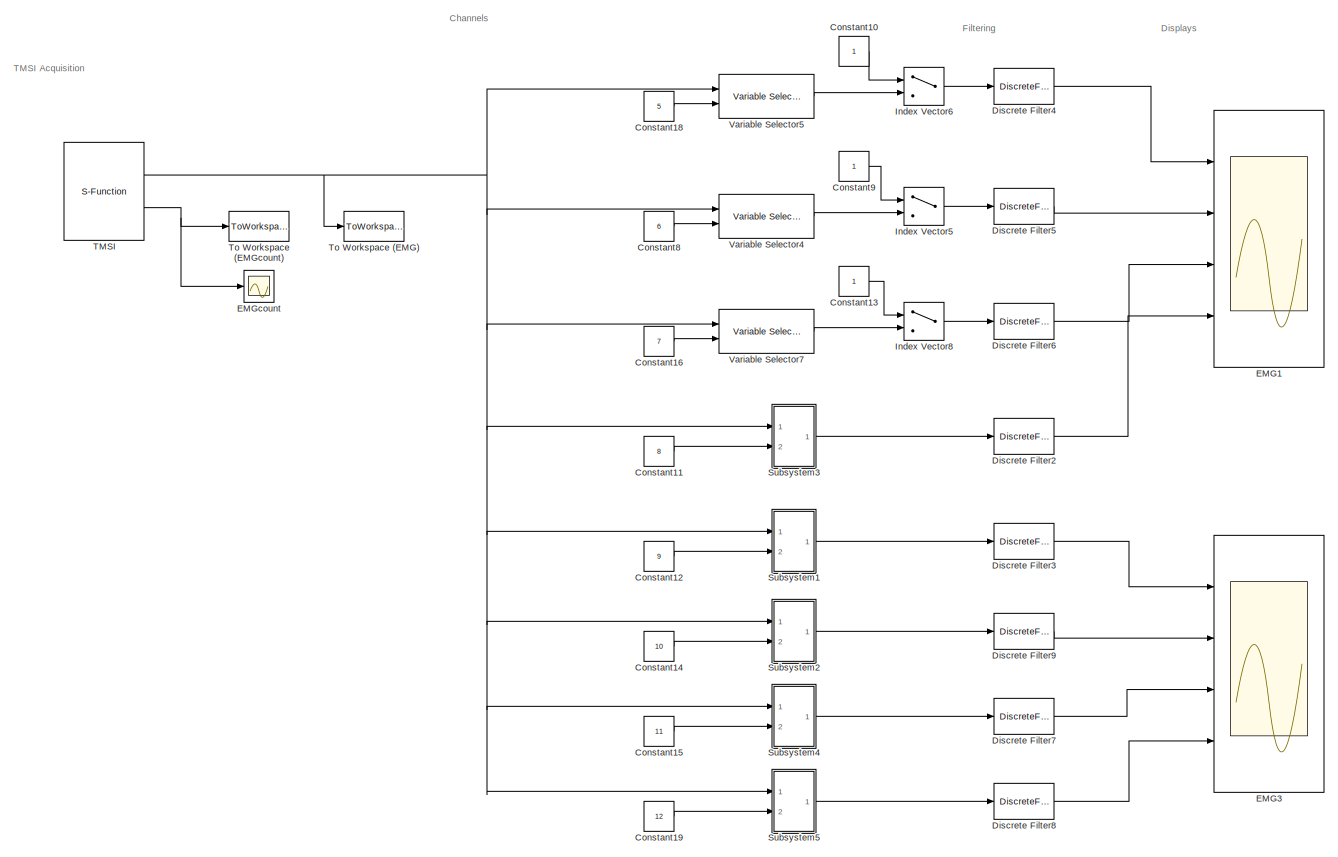
[diagram: root canvas - part 1/1, most of the canvas]
MODEL slx_6db5673837e5
KIND model
CONFIG AbsTol = auto
CONFIG EnableMultiTasking = off
CONFIG FixedStep = 0.01
CONFIG MaxStep = auto
CONFIG MinStep = auto
CONFIG RelTol = 1e-3
CONFIG SampleTimeConstraint = Unconstrained
CONFIG Solver = FixedStepAuto
CONFIG SolverName = FixedStepAuto
CONFIG StartTime = 0.0
CONFIG StopFcn = [file,path] = uiputfile;  \ncd(path)\nsave(file, 'EMGdata', 'EMGcount', 'QuatAngle', 'Angles', 'Angles23', 'QuatAngle1')\ncd ..
CONFIG StopTime = Inf
BLOCK [Constant] Constant10
BLOCK [Constant] Constant11
  Value = 8
BLOCK [Constant] Constant12
  Value = 9
BLOCK [Constant] Constant13
BLOCK [Constant] Constant14
  Value = 10
BLOCK [Constant] Constant15
  Value = 11
BLOCK [Constant] Constant16
  Value = 7
BLOCK [Constant] Constant18
  Value = 5
BLOCK [Constant] Constant19
  Value = 12
BLOCK [Constant] Constant8
  Value = 6
BLOCK [Constant] Constant9
BLOCK [DiscreteFilter] Discrete Filter2
  Denominator = [1.0000   -2.8773    2.7620   -0.8845]
  InputPortMap = u0
  Numerator = [0.9405   -2.8214    2.8214   -0.9405]
  Ports = [1, 1]
BLOCK [DiscreteFilter] Discrete Filter3
  Denominator = [1.0000   -2.8773    2.7620   -0.8845]
  InputPortMap = u0
  Numerator = [0.9405   -2.8214    2.8214   -0.9405]
  Ports = [1, 1]
BLOCK [DiscreteFilter] Discrete Filter4
  Denominator = [1.0000   -2.8773    2.7620   -0.8845]
  InputPortMap = u0
  Numerator = [0.9405   -2.8214    2.8214   -0.9405]
  Ports = [1, 1]
BLOCK [DiscreteFilter] Discrete Filter5
  Denominator = [1.0000   -2.8773    2.7620   -0.8845]
  InputPortMap = u0
  Numerator = [0.9405   -2.8214    2.8214   -0.9405]
  Ports = [1, 1]
BLOCK [DiscreteFilter] Discrete Filter6
  Denominator = [1.0000   -2.8773    2.7620   -0.8845]
  InputPortMap = u0
  Numerator = [0.9405   -2.8214    2.8214   -0.9405]
  Ports = [1, 1]
BLOCK [DiscreteFilter] Discrete Filter7
  Denominator = [1.0000   -2.8773    2.7620   -0.8845]
  InputPortMap = u0
  Numerator = [0.9405   -2.8214    2.8214   -0.9405]
  Ports = [1, 1]
BLOCK [DiscreteFilter] Discrete Filter8
  Denominator = [1.0000   -2.8773    2.7620   -0.8845]
  InputPortMap = u0
  Numerator = [0.9405   -2.8214    2.8214   -0.9405]
  Ports = [1, 1]
BLOCK [DiscreteFilter] Discrete Filter9
  Denominator = [1.0000   -2.8773    2.7620   -0.8845]
  InputPortMap = u0
  Numerator = [0.9405   -2.8214    2.8214   -0.9405]
  Ports = [1, 1]
BLOCK [Scope] EMG1
  NumInputPorts = 4
  Ports = [4]
  ScopeSpecificationString = Simulink.scopes.TimeScopeBlockCfg('CurrentConfiguration', extmgr.ConfigurationSet(extmgr.Configuration('Core','General UI',true),extmgr.Configuration('Core','Source UI',true),extmgr.Configuration('Sources','WiredSimulink',true,'DataLoggingVariableName','ScopeData1'),extmgr.Configuration('Visuals','Time Domain',true,'SerializedDisplays',{struct('MinYLimReal','-0.000001','MaxYLimReal','0.0000009','Y...<+3486ch>
BLOCK [Scope] EMG3
  NumInputPorts = 4
  Ports = [4]
  ScopeSpecificationString = Simulink.scopes.TimeScopeBlockCfg('CurrentConfiguration', extmgr.ConfigurationSet(extmgr.Configuration('Core','General UI',true),extmgr.Configuration('Core','Source UI',true),extmgr.Configuration('Sources','WiredSimulink',true,'DataLoggingVariableName','ScopeData1'),extmgr.Configuration('Visuals','Time Domain',true,'SerializedDisplays',{struct('MinYLimReal','-0.0000007','MaxYLimReal','0.0000006','...<+3628ch>
BLOCK [Scope] EMGcount
  NumInputPorts = 1
  Ports = [1]
  ScopeSpecificationString = Simulink.scopes.TimeScopeBlockCfg('CurrentConfiguration', extmgr.ConfigurationSet(extmgr.Configuration('Core','General UI',true),extmgr.Configuration('Core','Source UI',true),extmgr.Configuration('Sources','WiredSimulink',true,'DataLoggingVariableName','ScopeData2'),extmgr.Configuration('Visuals','Time Domain',true,'SerializedDisplays',{struct('MinYLimReal','-1.375','MaxYLimReal','12.375','YLabelR...<+1378ch>
BLOCK [MultiPortSwitch] Index Vector5
  DataPortOrder = Zero-based contiguous
  InputSameDT = off
  Inputs = 1
  Ports = [2, 1]
  SaturateOnIntegerOverflow = off
  zeroidx = on
BLOCK [MultiPortSwitch] Index Vector6
  DataPortOrder = Zero-based contiguous
  InputSameDT = off
  Inputs = 1
  Ports = [2, 1]
  SaturateOnIntegerOverflow = off
  zeroidx = on
BLOCK [MultiPortSwitch] Index Vector8
  DataPortOrder = Zero-based contiguous
  InputSameDT = off
  Inputs = 1
  Ports = [2, 1]
  SaturateOnIntegerOverflow = off
  zeroidx = on
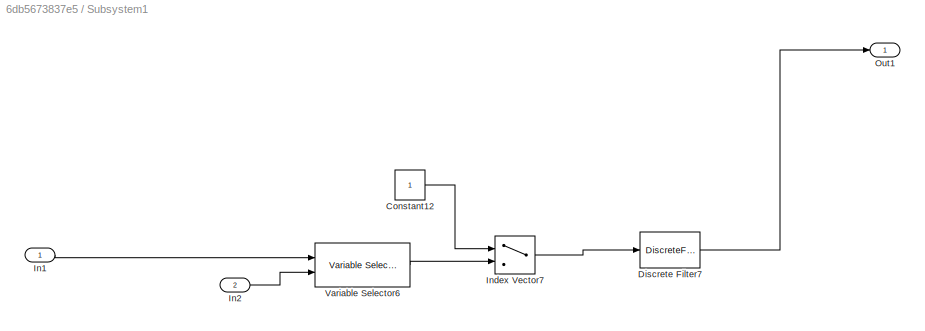
BLOCK [SubSystem] Subsystem1
  Ports = [2, 1]
  RequestExecContextInheritance = off
  Variant = off
BLOCK [Constant] Subsystem1/Constant12
BLOCK [DiscreteFilter] Subsystem1/Discrete Filter7
  Denominator = [1.0000   -2.8773    2.7620   -0.8845]
  InputPortMap = u0
  Numerator = [0.9405   -2.8214    2.8214   -0.9405]
  Ports = [1, 1]
BLOCK [Inport] Subsystem1/In1
  IconDisplay = Port number
BLOCK [Inport] Subsystem1/In2
  IconDisplay = Port number
  Port = 2
BLOCK [MultiPortSwitch] Subsystem1/Index Vector7
  DataPortOrder = Zero-based contiguous
  InputSameDT = off
  Inputs = 1
  Ports = [2, 1]
  SaturateOnIntegerOverflow = off
  zeroidx = on
BLOCK [Outport] Subsystem1/Out1
  IconDisplay = Port number
BLOCK [Reference] Subsystem1/Variable Selector6  REF=dspindex/Variable
Selector
  Ports = [2, 1]
  SourceBlock = dspindex/Variable\nSelector
  SourceProductBaseCode = DS
  SourceProductName = DSP System Toolbox
  SourceType = Variable Selector
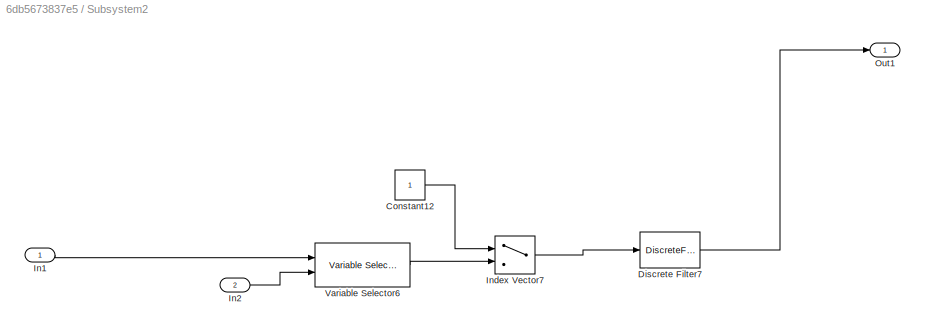
BLOCK [SubSystem] Subsystem2
  Ports = [2, 1]
  RequestExecContextInheritance = off
  Variant = off
BLOCK [Constant] Subsystem2/Constant12
BLOCK [DiscreteFilter] Subsystem2/Discrete Filter7
  Denominator = [1.0000   -2.8773    2.7620   -0.8845]
  InputPortMap = u0
  Numerator = [0.9405   -2.8214    2.8214   -0.9405]
  Ports = [1, 1]
BLOCK [Inport] Subsystem2/In1
  IconDisplay = Port number
BLOCK [Inport] Subsystem2/In2
  IconDisplay = Port number
  Port = 2
BLOCK [MultiPortSwitch] Subsystem2/Index Vector7
  DataPortOrder = Zero-based contiguous
  InputSameDT = off
  Inputs = 1
  Ports = [2, 1]
  SaturateOnIntegerOverflow = off
  zeroidx = on
BLOCK [Outport] Subsystem2/Out1
  IconDisplay = Port number
BLOCK [Reference] Subsystem2/Variable Selector6  REF=dspindex/Variable
Selector
  Ports = [2, 1]
  SourceBlock = dspindex/Variable\nSelector
  SourceProductBaseCode = DS
  SourceProductName = DSP System Toolbox
  SourceType = Variable Selector
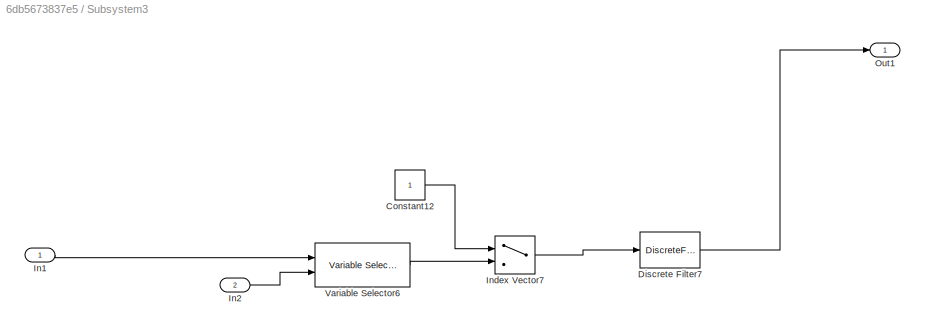
BLOCK [SubSystem] Subsystem3
  Ports = [2, 1]
  RequestExecContextInheritance = off
  Variant = off
BLOCK [Constant] Subsystem3/Constant12
BLOCK [DiscreteFilter] Subsystem3/Discrete Filter7
  Denominator = [1.0000   -2.8773    2.7620   -0.8845]
  InputPortMap = u0
  Numerator = [0.9405   -2.8214    2.8214   -0.9405]
  Ports = [1, 1]
BLOCK [Inport] Subsystem3/In1
  IconDisplay = Port number
BLOCK [Inport] Subsystem3/In2
  IconDisplay = Port number
  Port = 2
BLOCK [MultiPortSwitch] Subsystem3/Index Vector7
  DataPortOrder = Zero-based contiguous
  InputSameDT = off
  Inputs = 1
  Ports = [2, 1]
  SaturateOnIntegerOverflow = off
  zeroidx = on
BLOCK [Outport] Subsystem3/Out1
  IconDisplay = Port number
BLOCK [Reference] Subsystem3/Variable Selector6  REF=dspindex/Variable
Selector
  Ports = [2, 1]
  SourceBlock = dspindex/Variable\nSelector
  SourceProductBaseCode = DS
  SourceProductName = DSP System Toolbox
  SourceType = Variable Selector
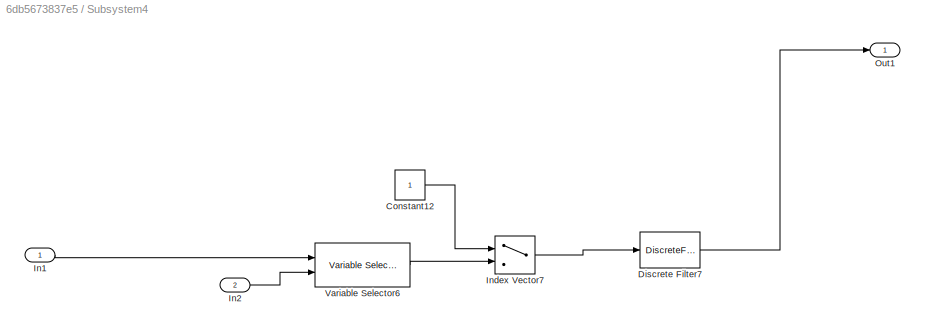
BLOCK [SubSystem] Subsystem4
  Ports = [2, 1]
  RequestExecContextInheritance = off
  Variant = off
BLOCK [Constant] Subsystem4/Constant12
BLOCK [DiscreteFilter] Subsystem4/Discrete Filter7
  Denominator = [1.0000   -2.8773    2.7620   -0.8845]
  InputPortMap = u0
  Numerator = [0.9405   -2.8214    2.8214   -0.9405]
  Ports = [1, 1]
BLOCK [Inport] Subsystem4/In1
  IconDisplay = Port number
BLOCK [Inport] Subsystem4/In2
  IconDisplay = Port number
  Port = 2
BLOCK [MultiPortSwitch] Subsystem4/Index Vector7
  DataPortOrder = Zero-based contiguous
  InputSameDT = off
  Inputs = 1
  Ports = [2, 1]
  SaturateOnIntegerOverflow = off
  zeroidx = on
BLOCK [Outport] Subsystem4/Out1
  IconDisplay = Port number
BLOCK [Reference] Subsystem4/Variable Selector6  REF=dspindex/Variable
Selector
  Ports = [2, 1]
  SourceBlock = dspindex/Variable\nSelector
  SourceProductBaseCode = DS
  SourceProductName = DSP System Toolbox
  SourceType = Variable Selector
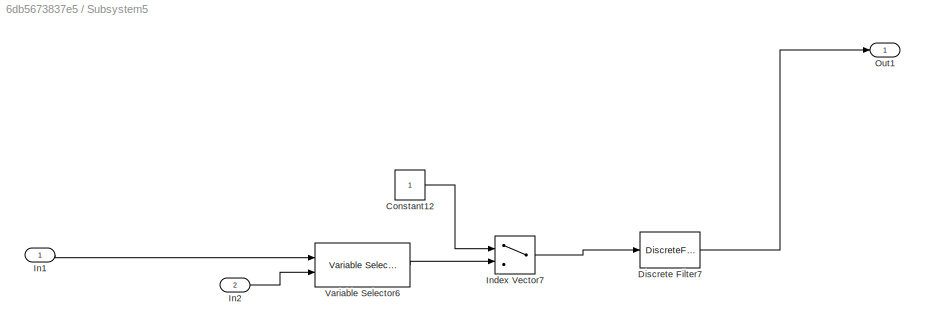
BLOCK [SubSystem] Subsystem5
  Ports = [2, 1]
  RequestExecContextInheritance = off
  Variant = off
BLOCK [Constant] Subsystem5/Constant12
BLOCK [DiscreteFilter] Subsystem5/Discrete Filter7
  Denominator = [1.0000   -2.8773    2.7620   -0.8845]
  InputPortMap = u0
  Numerator = [0.9405   -2.8214    2.8214   -0.9405]
  Ports = [1, 1]
BLOCK [Inport] Subsystem5/In1
  IconDisplay = Port number
BLOCK [Inport] Subsystem5/In2
  IconDisplay = Port number
  Port = 2
BLOCK [MultiPortSwitch] Subsystem5/Index Vector7
  DataPortOrder = Zero-based contiguous
  InputSameDT = off
  Inputs = 1
  Ports = [2, 1]
  SaturateOnIntegerOverflow = off
  zeroidx = on
BLOCK [Outport] Subsystem5/Out1
  IconDisplay = Port number
BLOCK [Reference] Subsystem5/Variable Selector6  REF=dspindex/Variable
Selector
  Ports = [2, 1]
  SourceBlock = dspindex/Variable\nSelector
  SourceProductBaseCode = DS
  SourceProductName = DSP System Toolbox
  SourceType = Variable Selector
BLOCK [S-Function] TMSI
  EnableBusSupport = off
  FunctionName = TMSI
  Parameters = uint16(frequency) int32(aux) int32(digital) int32(vectorsize) int32(ch)
  Ports = [0, 2]
  SFcnIsStateOwnerBlock = off
  SFunctionDeploymentMode = off
BLOCK [ToWorkspace] To Workspace (EMG)
  FixptAsFi = on
  MaxDataPoints = inf
  Ports = [1]
  SampleTime = -1
  Save2DSignal = 3-D array (concatenate along third dimension)
  SaveFormat = Structure With Time
  VariableName = EMGdata
BLOCK [ToWorkspace] To Workspace (EMGcount)
  FixptAsFi = on
  MaxDataPoints = inf
  Ports = [1]
  SampleTime = -1
  Save2DSignal = 3-D array (concatenate along third dimension)
  SaveFormat = Structure With Time
  VariableName = EMGcount
BLOCK [Reference] Variable Selector4  REF=dspindex/Variable
Selector
  Ports = [2, 1]
  SourceBlock = dspindex/Variable\nSelector
  SourceProductBaseCode = DS
  SourceProductName = DSP System Toolbox
  SourceType = Variable Selector
BLOCK [Reference] Variable Selector5  REF=dspindex/Variable
Selector
  Ports = [2, 1]
  SourceBlock = dspindex/Variable\nSelector
  SourceProductBaseCode = DS
  SourceProductName = DSP System Toolbox
  SourceType = Variable Selector
BLOCK [Reference] Variable Selector7  REF=dspindex/Variable
Selector
  Ports = [2, 1]
  SourceBlock = dspindex/Variable\nSelector
  SourceProductBaseCode = DS
  SourceProductName = DSP System Toolbox
  SourceType = Variable Selector
ANNOTATION (root): Channels
ANNOTATION (root): Displays
ANNOTATION (root): Filtering
ANNOTATION (root): TMSI Acquisition
LINE Constant10:1 -> Index Vector6:1
LINE Constant11:1 -> Subsystem3:2
LINE Constant12:1 -> Subsystem1:2
LINE Constant13:1 -> Index Vector8:1
LINE Constant14:1 -> Subsystem2:2
LINE Constant15:1 -> Subsystem4:2
LINE Constant16:1 -> Variable Selector7:2
LINE Constant18:1 -> Variable Selector5:2
LINE Constant19:1 -> Subsystem5:2
LINE Constant8:1 -> Variable Selector4:2
LINE Constant9:1 -> Index Vector5:1
LINE Discrete Filter2:1 -> EMG1:4
LINE Discrete Filter3:1 -> EMG3:1
LINE Discrete Filter4:1 -> EMG1:1
LINE Discrete Filter5:1 -> EMG1:2
LINE Discrete Filter6:1 -> EMG1:3
LINE Discrete Filter7:1 -> EMG3:3
LINE Discrete Filter8:1 -> EMG3:4
LINE Discrete Filter9:1 -> EMG3:2
LINE Index Vector5:1 -> Discrete Filter5:1
LINE Index Vector6:1 -> Discrete Filter4:1
LINE Index Vector8:1 -> Discrete Filter6:1
LINE Subsystem1/Constant12:1 -> Subsystem1/Index Vector7:1
LINE Subsystem1/Discrete Filter7:1 -> Subsystem1/Out1:1
LINE Subsystem1/In1:1 -> Subsystem1/Variable Selector6:1
LINE Subsystem1/In2:1 -> Subsystem1/Variable Selector6:2
LINE Subsystem1/Index Vector7:1 -> Subsystem1/Discrete Filter7:1
LINE Subsystem1/Variable Selector6:1 -> Subsystem1/Index Vector7:2
LINE Subsystem1:1 -> Discrete Filter3:1
LINE Subsystem2/Constant12:1 -> Subsystem2/Index Vector7:1
LINE Subsystem2/Discrete Filter7:1 -> Subsystem2/Out1:1
LINE Subsystem2/In1:1 -> Subsystem2/Variable Selector6:1
LINE Subsystem2/In2:1 -> Subsystem2/Variable Selector6:2
LINE Subsystem2/Index Vector7:1 -> Subsystem2/Discrete Filter7:1
LINE Subsystem2/Variable Selector6:1 -> Subsystem2/Index Vector7:2
LINE Subsystem2:1 -> Discrete Filter9:1
LINE Subsystem3/Constant12:1 -> Subsystem3/Index Vector7:1
LINE Subsystem3/Discrete Filter7:1 -> Subsystem3/Out1:1
LINE Subsystem3/In1:1 -> Subsystem3/Variable Selector6:1
LINE Subsystem3/In2:1 -> Subsystem3/Variable Selector6:2
LINE Subsystem3/Index Vector7:1 -> Subsystem3/Discrete Filter7:1
LINE Subsystem3/Variable Selector6:1 -> Subsystem3/Index Vector7:2
LINE Subsystem3:1 -> Discrete Filter2:1
LINE Subsystem4/Constant12:1 -> Subsystem4/Index Vector7:1
LINE Subsystem4/Discrete Filter7:1 -> Subsystem4/Out1:1
LINE Subsystem4/In1:1 -> Subsystem4/Variable Selector6:1
LINE Subsystem4/In2:1 -> Subsystem4/Variable Selector6:2
LINE Subsystem4/Index Vector7:1 -> Subsystem4/Discrete Filter7:1
LINE Subsystem4/Variable Selector6:1 -> Subsystem4/Index Vector7:2
LINE Subsystem4:1 -> Discrete Filter7:1
LINE Subsystem5/Constant12:1 -> Subsystem5/Index Vector7:1
LINE Subsystem5/Discrete Filter7:1 -> Subsystem5/Out1:1
LINE Subsystem5/In1:1 -> Subsystem5/Variable Selector6:1
LINE Subsystem5/In2:1 -> Subsystem5/Variable Selector6:2
LINE Subsystem5/Index Vector7:1 -> Subsystem5/Discrete Filter7:1
LINE Subsystem5/Variable Selector6:1 -> Subsystem5/Index Vector7:2
LINE Subsystem5:1 -> Discrete Filter8:1
NET TMSI:1 -> Subsystem1:1, Subsystem2:1, Subsystem3:1, Subsystem4:1, Subsystem5:1, To Workspace (EMG):1, Variable Selector4:1, Variable Selector5:1, Variable Selector7:1
NET TMSI:2 -> EMGcount:1, To Workspace (EMGcount):1
LINE Variable Selector4:1 -> Index Vector5:2
LINE Variable Selector5:1 -> Index Vector6:2
LINE Variable Selector7:1 -> Index Vector8:2
note: NET lines group one-source signal fan-out (src -> all destinations, sorted); 1:1 wires keep LINE
